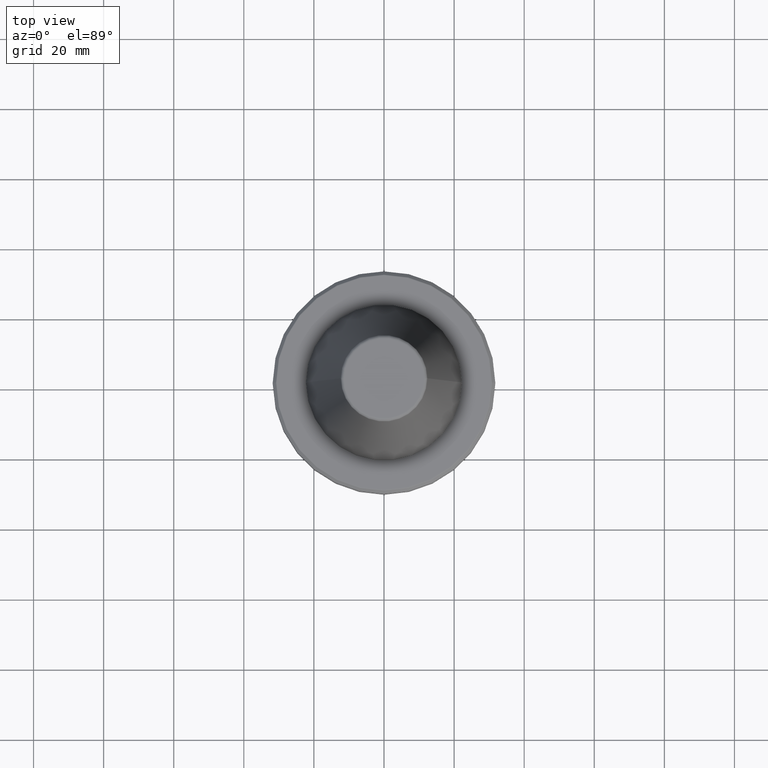
[diagram: clean part render]
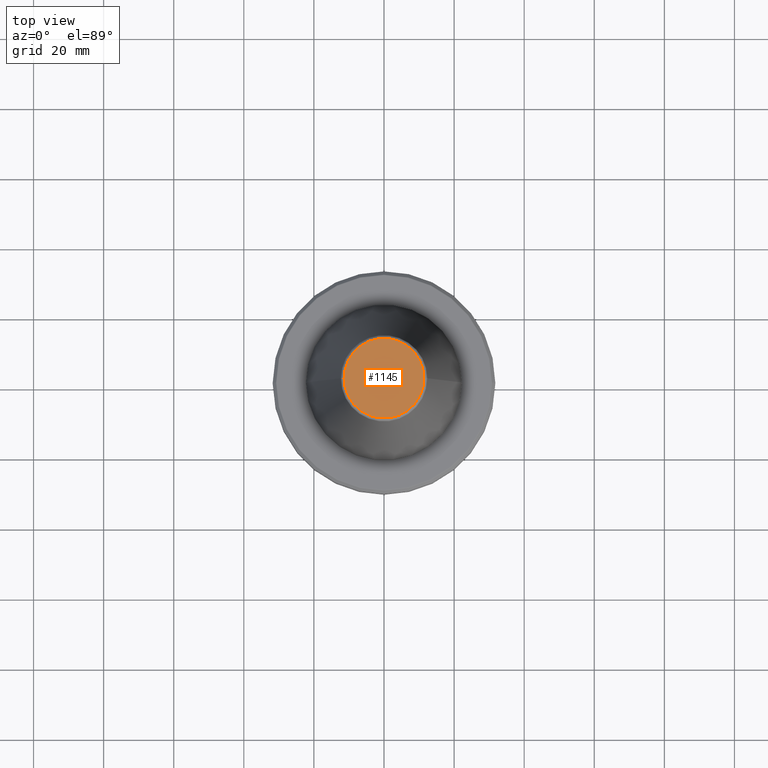
[diagram: same view with one face highlighted and labeled with its STEP entity id]
A machine part, top view. The second image highlights one B-rep face of the part: STEP entity #1145.
In plain terms, the highlighted planar face has unit normal (0, -0, 1).
Its self-contained STEP definition (entity closure, byte-faithful):
#14 = CARTESIAN_POINT ( 'NONE',  ( 0.0000000000000000000, 0.0000000000000000000, 68.40000000000000600 ) ) ;
#63 = AXIS2_PLACEMENT_3D ( 'NONE', #1065, #498, #1162 ) ;
#126 = VERTEX_POINT ( 'NONE', #789 ) ;
#182 = CIRCLE ( 'NONE', #258, 11.38516258961893100 ) ;
#219 = EDGE_CURVE ( 'NONE', #126, #264, #1214, .T. ) ;
#251 = DIRECTION ( 'NONE',  ( -0.0000000000000000000, -0.0000000000000000000, 1.000000000000000000 ) ) ;
#253 = EDGE_LOOP ( 'NONE', ( #899, #1099 ) ) ;
#258 = AXIS2_PLACEMENT_3D ( 'NONE', #825, #251, #923 ) ;
#264 = VERTEX_POINT ( 'NONE', #507 ) ;
#408 = DIRECTION ( 'NONE',  ( -0.0000000000000000000, -0.0000000000000000000, 1.000000000000000000 ) ) ;
#498 = DIRECTION ( 'NONE',  ( 0.0000000000000000000, -0.0000000000000000000, 1.000000000000000000 ) ) ;
#507 = CARTESIAN_POINT ( 'NONE',  ( -11.38516258961893100, 1.454871700296352000E-015, 68.40000000000000600 ) ) ;
#649 = EDGE_CURVE ( 'NONE', #264, #126, #182, .T. ) ;
#672 = PLANE ( 'NONE',  #63 ) ;
#772 = FACE_OUTER_BOUND ( 'NONE', #253, .T. ) ;
#789 = CARTESIAN_POINT ( 'NONE',  ( 11.38516258961893100, 0.0000000000000000000, 68.40000000000000600 ) ) ;
#825 = CARTESIAN_POINT ( 'NONE',  ( 0.0000000000000000000, 0.0000000000000000000, 68.40000000000000600 ) ) ;
#899 = ORIENTED_EDGE ( 'NONE', *, *, #219, .T. ) ;
#909 = AXIS2_PLACEMENT_3D ( 'NONE', #14, #408, #971 ) ;
#923 = DIRECTION ( 'NONE',  ( 1.000000000000000000, 0.0000000000000000000, 0.0000000000000000000 ) ) ;
#971 = DIRECTION ( 'NONE',  ( 1.000000000000000000, 0.0000000000000000000, 0.0000000000000000000 ) ) ;
#1065 = CARTESIAN_POINT ( 'NONE',  ( 0.0000000000000000000, -8.337524199435086500E-014, 68.39999999999999100 ) ) ;
#1099 = ORIENTED_EDGE ( 'NONE', *, *, #649, .T. ) ;
#1145 = ADVANCED_FACE ( 'NONE', ( #772 ), #672, .T. ) ;
#1162 = DIRECTION ( 'NONE',  ( 1.000000000000000000, 0.0000000000000000000, 0.0000000000000000000 ) ) ;
#1214 = CIRCLE ( 'NONE', #909, 11.38516258961893100 ) ;